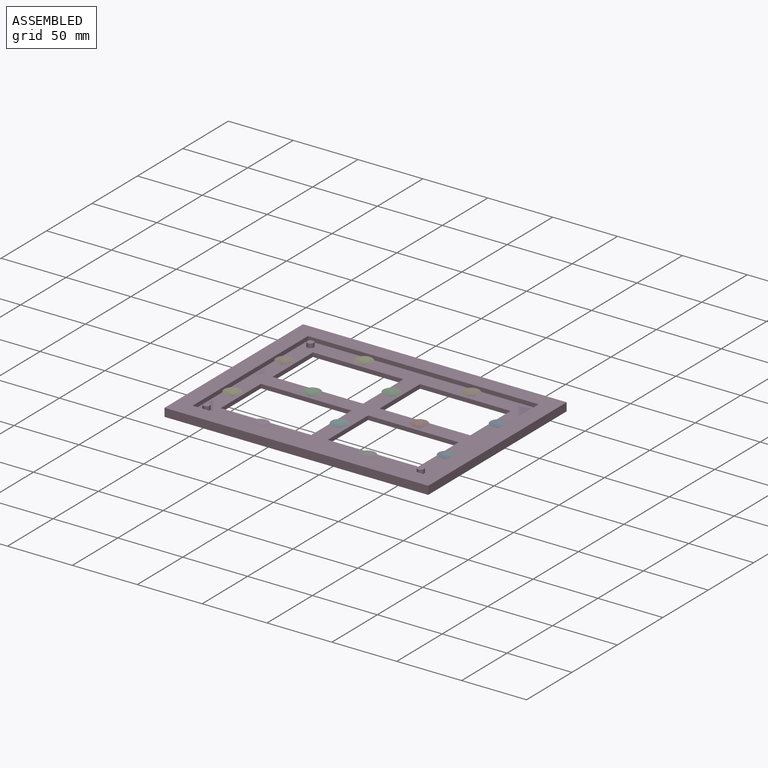
[diagram: assembled view]
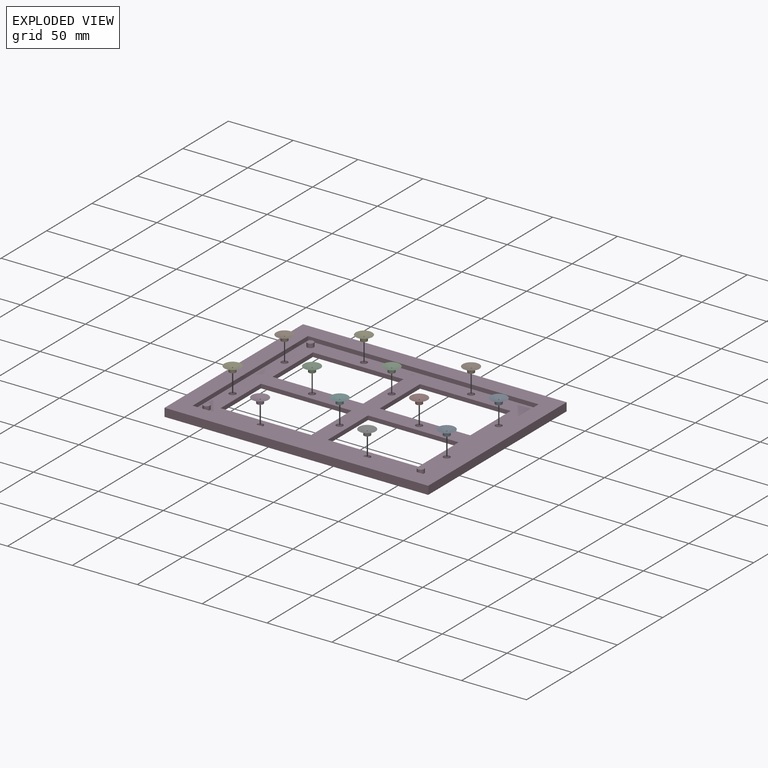
[diagram: exploded view]
GUIDED TOUR — MATED ASSEMBLY (Onshape document d00b283f4223f2fedd9b325e, AutoMate assembly d00b283f4223f2fedd9b325e_2fc6355149cce2fc89a956a5_8d865ac7467b71a8227b43af_default)

This assembly has 13 components, labeled P0..P12 below (a component is one placed occurrence of a part; the same part can appear more than once), held together by 24 mates. A mate is a constraint between two components; its type names the relative motion it leaves free:
  PLANAR — leaves sliding in the plane through the listed point (normal = the listed direction) and rotation about that normal free,
  SLIDER — leaves translation along the listed axis free.
Axis/direction vectors are unit vectors and 'through' points are millimeter coordinates, both in the assembly's world frame.

MATES
  1. PLANAR "Planar 11": P11 <-> P0, direction (0.000, 0.000, 1.000) through (109.31, 105.97, 10.94) mm
  2. SLIDER "Slider 7": P2 <-> P11, axis (0.000, 0.000, -1.000) through (-14.52, 134.54, 10.94) mm
  3. PLANAR "Planar 7": P11 <-> P2, direction (0.000, 0.000, 1.000) through (-14.52, 134.54, 10.94) mm
  4. PLANAR "Planar 6": P11 <-> P7, direction (0.000, 0.000, 1.000) through (68.03, 134.54, 10.94) mm
  5. SLIDER "Slider 8": P11 <-> P4, axis (0.000, 0.000, 1.000) through (-55.79, 105.97, 10.94) mm
  6. PLANAR "Planar 3": P11 <-> P10, direction (0.000, 0.000, 1.000) through (26.76, 163.12, 10.94) mm
  7. PLANAR "Planar 9": P11 <-> P3, direction (0.000, 0.000, 1.000) through (-14.52, 77.39, 10.94) mm
  8. PLANAR "Planar 2": P11 <-> P1, direction (0.000, 0.000, 1.000) through (-55.79, 163.12, 10.94) mm
  9. SLIDER "Slider 4": P11 <-> P9, axis (0.000, 0.000, 1.000) through (68.03, 191.69, 10.94) mm
  10. SLIDER "Slider 5": P8 <-> P11, axis (0.000, 0.000, -1.000) through (109.31, 163.12, 10.94) mm
  11. PLANAR "Planar 10": P11 <-> P5, direction (0.000, 0.000, 1.000) through (26.76, 105.97, 10.94) mm
  12. SLIDER "Slider 6": P11 <-> P7, axis (0.000, 0.000, 1.000) through (68.03, 134.54, 13.48) mm
  13. SLIDER "Slider 3": P11 <-> P10, axis (0.000, 0.000, 1.000) through (26.76, 163.12, 13.48) mm
  14. PLANAR "Planar 8": P11 <-> P4, direction (0.000, 0.000, 1.000) through (-55.79, 105.97, 10.94) mm
  15. SLIDER "Slider 12": P11 <-> P6, axis (0.000, 0.000, 1.000) through (68.03, 77.39, 13.48) mm
  16. SLIDER "Slider 10": P11 <-> P5, axis (0.000, 0.000, 1.000) through (26.76, 105.97, 13.48) mm
  17. SLIDER "Slider 11": P11 <-> P0, axis (0.000, 0.000, 1.000) through (109.31, 105.97, 13.48) mm
  18. PLANAR "Planar 1": P11 <-> P12, direction (0.000, 0.000, 1.000) through (-14.52, 191.69, 10.94) mm
  19. SLIDER "Slider 1": P11 <-> P12, axis (0.000, 0.000, 1.000) through (-14.52, 191.69, 13.48) mm
  20. SLIDER "Slider 2": P11 <-> P1, axis (0.000, 0.000, 1.000) through (-55.79, 163.12, 13.48) mm
  21. SLIDER "Slider 9": P11 <-> P3, axis (0.000, 0.000, 1.000) through (-14.52, 77.39, 10.94) mm
  22. PLANAR "Planar 4": P11 <-> P9, direction (0.000, 0.000, 1.000) through (68.03, 191.69, 10.94) mm
  23. PLANAR "Planar 5": P8 <-> P11, direction (0.000, 0.000, -1.000) through (109.31, 163.12, 10.94) mm
  24. PLANAR "Planar 12": P11 <-> P6, direction (0.000, 0.000, 1.000) through (68.03, 77.39, 10.94) mm

ASSEMBLY ORDER
  1. P11 — the base component [order verified]
  2. P7 [order verified]
  3. P2 [order verified]
  4. P5 [order verified]
  5. P0 [order verified]
  6. P4 [order verified]
  7. P10 [order verified]
  8. P6 [order verified]
  9. P8 [order verified]
  10. P3 [order verified]
  11. P1 [order verified]
  12. P12 [order verified]
  13. P9 [order verified]
Order-tag legend:
  [order verified] — this step's position reverses a verified removal order: the component was checked to insert without passing through the ones already placed.

Of the 13 components, 13 carry the full construction recipe — the FeatureScript program that regenerates the part's solid from scratch; the rest are supplied as boundary geometry only.
Because this assembly has more than 12 components, the tour below covers the 12 most significant ones individually (every recipe-attached component first, then the largest by part volume), in assembly order; the remaining 1 are summarized together in a grouped section at the end.
Each toured component is shown spotlighted twice — in the assembled view, then in the exploded view, where a leader line traces a displaced component back to its assembled socket (saturated green if recipe-attached, orange if geometry-only; every other component desaturated gray) — followed by its recipe or geometry summary and the mates that hold it.
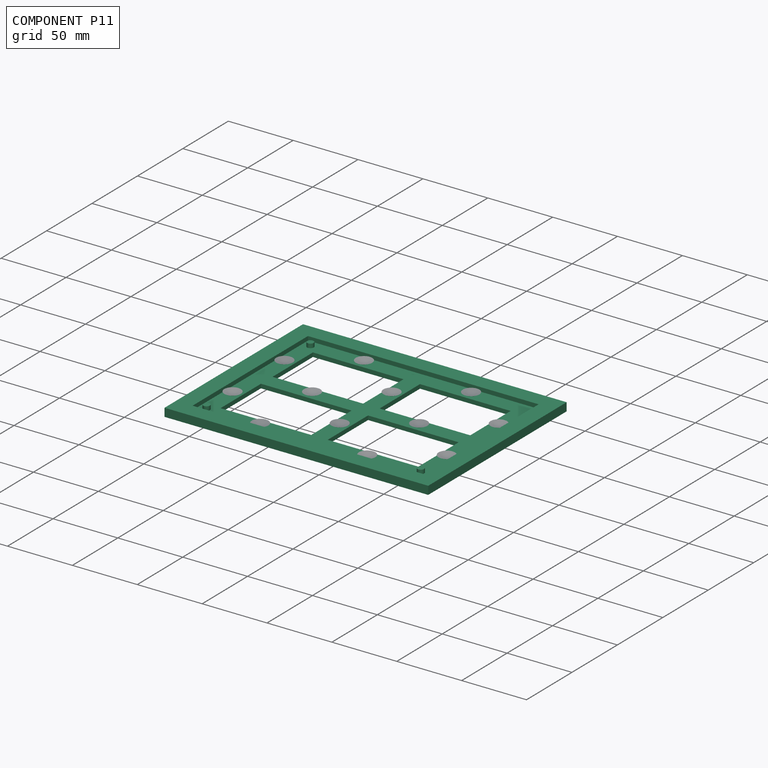
[diagram: component P11 — assembled]
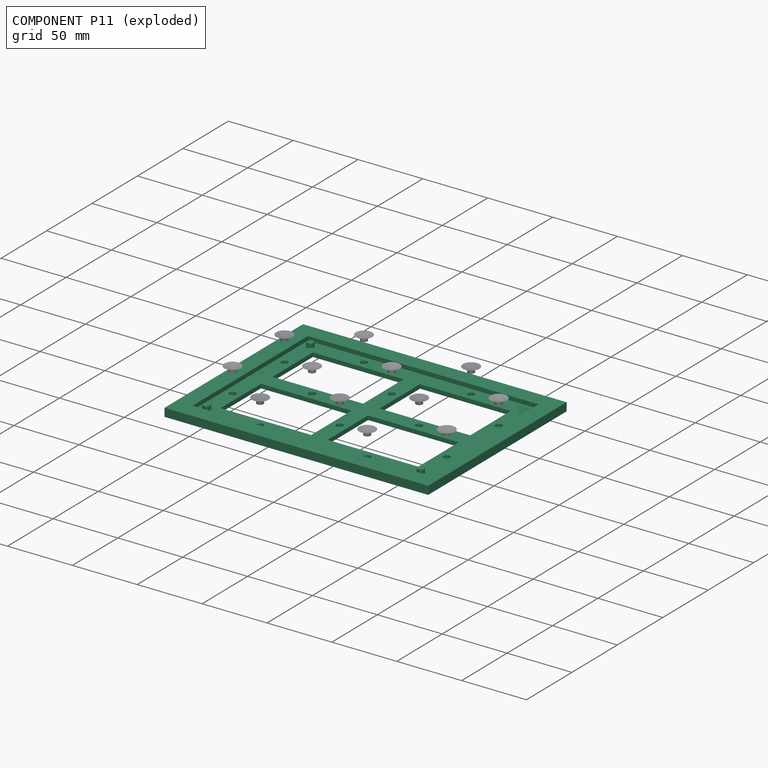
[diagram: component P11 — exploded]
COMPONENT P11 — recipe-attached (CADFS 00727624, mesh-verified: the recipe's output STEP matches this component's geometry to below the mesh-comparison resolution (tessellation chordal tolerance ~0.381 mm)).
Held by: PLANAR mate "Planar 11" to P0; SLIDER mate "Slider 7" to P2; PLANAR mate "Planar 7" to P2; PLANAR mate "Planar 6" to P7; SLIDER mate "Slider 8" to P4; PLANAR mate "Planar 3" to P10; PLANAR mate "Planar 9" to P3; PLANAR mate "Planar 2" to P1; SLIDER mate "Slider 4" to P9; SLIDER mate "Slider 5" to P8; PLANAR mate "Planar 10" to P5; SLIDER mate "Slider 6" to P7; SLIDER mate "Slider 3" to P10; PLANAR mate "Planar 8" to P4; SLIDER mate "Slider 12" to P6; SLIDER mate "Slider 10" to P5; SLIDER mate "Slider 11" to P0; PLANAR mate "Planar 1" to P12; SLIDER mate "Slider 1" to P12; SLIDER mate "Slider 2" to P1; SLIDER mate "Slider 9" to P3; PLANAR mate "Planar 4" to P9; PLANAR mate "Planar 5" to P8; PLANAR mate "Planar 12" to P6.
Construction recipe (FeatureScript — the CAD program that rebuilds this solid; sketch coordinates are in the units given by the * unit suffixes, e.g. mm):

FeatureScript 1511;
import(path : "onshape/std/geometry.fs", version : "1511.0");
import(path : "onshape/std/common.fs", version : "1511.0");
const mm = millimeter;
const VERTEX = EntityType.VERTEX;
const EDGE = EntityType.EDGE;
const FACE = EntityType.FACE;
const BODY = EntityType.BODY;
function v(x, y){return vector(x, y);}
function OD(order){return orderDisambiguation(order);}
function OSD(set){return originalSetDisambiguation(set);}
function TD(topology){return topologyDisambiguation(topology);}
function TDD(query){return trueDependencyDisambiguation(query);}
function sQuery(a, b, c) {return sketchEntityQuery(a, b, c);}

annotation { "Feature Type Name" : "Feature", "Feature Type Description" : "" }
export const myFeature = defineFeature(function(context is Context, id is Id, definition is map)
    precondition{}
    {
        {
            var Q0;
            Q0=qCreatedBy(makeId("Top.planeOp"),FACE);
            var sketch = newSketch(context, id + "F0", { "sketchPlane" : qUnion([Q0])});
            skLineSegment(sketch, "E0.bottom", {"start": v(0, 0) * mm, "end": v(203.2, 0) * mm});
            skLineSegment(sketch, "E0.top", {"start": v(0, 152.4) * mm, "end": v(203.2, 152.4) * mm});
            skLineSegment(sketch, "E0.left", {"start": v(0, 0) * mm, "end": v(0, 152.4) * mm});
            skLineSegment(sketch, "E0.right", {"start": v(203.2, 0) * mm, "end": v(203.2, 152.4) * mm});
            skLineSegment(sketch, "E1.bottom", {"start": v(12.7, 139.7) * mm, "end": v(190.5, 139.7) * mm});
            skLineSegment(sketch, "E1.top", {"start": v(12.7, 12.7) * mm, "end": v(190.5, 12.7) * mm});
            skLineSegment(sketch, "E1.left", {"start": v(12.7, 139.7) * mm, "end": v(12.7, 12.7) * mm});
            skLineSegment(sketch, "E1.right", {"start": v(190.5, 139.7) * mm, "end": v(190.5, 12.7) * mm});
            skSolve(sketch);
        }
        {
            var Q0;
            Q0 = qSketchRegion(id + "F0", true);
            extrude(context, id + "F1", {"entities" : qUnion([Q0]), "depth" : 6.35 * mm, "offsetDistance" : 25.4 * mm});
        }
        {
            var Q0;
            Q0=qCreatedBy(makeId("Top.planeOp"),FACE);
            var sketch = newSketch(context, id + "F2", { "sketchPlane" : qUnion([Q0])});
            skLineSegment(sketch, "E2.bottom", {"start": v(12.7, 12.7) * mm, "end": v(190.5, 12.7) * mm});
            skLineSegment(sketch, "E2.top", {"start": v(12.7, 139.7) * mm, "end": v(190.5, 139.7) * mm});
            skLineSegment(sketch, "E2.left", {"start": v(12.7, 12.7) * mm, "end": v(12.7, 139.7) * mm});
            skLineSegment(sketch, "E2.right", {"start": v(190.5, 12.7) * mm, "end": v(190.5, 139.7) * mm});
            skLineSegment(sketch, "E3.bottom", {"start": v(25.4, 127) * mm, "end": v(95.25, 127) * mm});
            skLineSegment(sketch, "E3.top", {"start": v(25.4, 82.55) * mm, "end": v(95.25, 82.55) * mm});
            skLineSegment(sketch, "E3.left", {"start": v(25.4, 127) * mm, "end": v(25.4, 82.55) * mm});
            skLineSegment(sketch, "E3.right", {"start": v(95.25, 127) * mm, "end": v(95.25, 82.55) * mm});
            skLineSegment(sketch, "E4.bottom", {"start": v(107.95, 127) * mm, "end": v(177.8, 127) * mm});
            skLineSegment(sketch, "E4.top", {"start": v(107.95, 82.55) * mm, "end": v(177.8, 82.55) * mm});
            skLineSegment(sketch, "E4.left", {"start": v(107.95, 127) * mm, "end": v(107.95, 82.55) * mm});
            skLineSegment(sketch, "E4.right", {"start": v(177.8, 127) * mm, "end": v(177.8, 82.55) * mm});
            skLineSegment(sketch, "E5.bottom", {"start": v(25.4, 25.4) * mm, "end": v(95.25, 25.4) * mm});
            skLineSegment(sketch, "E5.top", {"start": v(25.4, 69.85) * mm, "end": v(95.25, 69.85) * mm});
            skLineSegment(sketch, "E5.left", {"start": v(25.4, 25.4) * mm, "end": v(25.4, 69.85) * mm});
            skLineSegment(sketch, "E5.right", {"start": v(95.25, 25.4) * mm, "end": v(95.25, 69.85) * mm});
            skLineSegment(sketch, "E6.bottom", {"start": v(107.95, 25.4) * mm, "end": v(177.8, 25.4) * mm});
            skLineSegment(sketch, "E6.top", {"start": v(107.95, 69.85) * mm, "end": v(177.8, 69.85) * mm});
            skLineSegment(sketch, "E6.left", {"start": v(107.95, 25.4) * mm, "end": v(107.95, 69.85) * mm});
            skLineSegment(sketch, "E6.right", {"start": v(177.8, 25.4) * mm, "end": v(177.8, 69.85) * mm});
            skSolve(sketch);
        }
        {
            var Q0;
            Q0 = qSketchRegion(id + "F2", true);
            extrude(context, id + "F3", {"entities" : qUnion([Q0]), "operationType" : NewBodyOperationType.ADD, "depth" : 3.17 * mm, "offsetDistance" : 25.4 * mm});
        }
        {
            var Q0;
            Q0=makeQuery(id+"F3.opExtrude","CAP_FACE",FACE,{"disambiguationData":[OSD([sQuery(id+"F2.wireOp",EDGE,"E2.bottom"),sQuery(id+"F2.wireOp",EDGE,"E2.top"),sQuery(id+"F2.wireOp",EDGE,"E2.left"),sQuery(id+"F2.wireOp",EDGE,"E2.right"),sQuery(id+"F2.wireOp",EDGE,"E3.bottom"),sQuery(id+"F2.wireOp",EDGE,"E3.top"),sQuery(id+"F2.wireOp",EDGE,"E3.left"),sQuery(id+"F2.wireOp",EDGE,"E3.right"),sQuery(id+"F2.wireOp",EDGE,"E4.bottom"),sQuery(id+"F2.wireOp",EDGE,"E4.top"),sQuery(id+"F2.wireOp",EDGE,"E4.left"),sQuery(id+"F2.wireOp",EDGE,"E4.right"),sQuery(id+"F2.wireOp",EDGE,"E5.bottom"),sQuery(id+"F2.wireOp",EDGE,"E5.top"),sQuery(id+"F2.wireOp",EDGE,"E5.left"),sQuery(id+"F2.wireOp",EDGE,"E5.right"),sQuery(id+"F2.wireOp",EDGE,"E6.bottom"),sQuery(id+"F2.wireOp",EDGE,"E6.top"),sQuery(id+"F2.wireOp",EDGE,"E6.left"),sQuery(id+"F2.wireOp",EDGE,"E6.right")])],"isStart":false});
            var sketch = newSketch(context, id + "F4", { "sketchPlane" : qUnion([Q0])});
            skCircle(sketch, "E7", {"center": v(19.05, 133.35) * mm, "radius": 2.54 * mm});
            skCircle(sketch, "E8", {"center": v(19.05, 19.05) * mm, "radius": 2.54 * mm});
            skCircle(sketch, "E9", {"center": v(184.15, 19.05) * mm, "radius": 2.54 * mm});
            skSolve(sketch);
        }
        {
            var Q0;
            Q0 = qSketchRegion(id + "F4", true);
            var Q1;
            Q1=makeQuery(id+"F1.opExtrude","CAP_FACE",FACE,{"disambiguationData":[OSD([sQuery(id+"F0.wireOp",EDGE,"E0.bottom"),sQuery(id+"F0.wireOp",EDGE,"E0.top"),sQuery(id+"F0.wireOp",EDGE,"E0.left"),sQuery(id+"F0.wireOp",EDGE,"E0.right"),sQuery(id+"F0.wireOp",EDGE,"E1.bottom"),sQuery(id+"F0.wireOp",EDGE,"E1.top"),sQuery(id+"F0.wireOp",EDGE,"E1.left"),sQuery(id+"F0.wireOp",EDGE,"E1.right")])],"isStart":false});
            extrude(context, id + "F5", {"entities" : qUnion([Q0]), "operationType" : NewBodyOperationType.ADD, "endBound" : BoundingType.UP_TO_SURFACE, "depth" : 25.4 * mm, "endBoundEntityFace" : qUnion([Q1]), "offsetDistance" : 25.4 * mm});
        }
        {
            var Q0;
            Q0=makeQuery(id+"F3.opExtrude","CAP_FACE",FACE,{"disambiguationData":[OSD([sQuery(id+"F2.wireOp",EDGE,"E2.bottom"),sQuery(id+"F2.wireOp",EDGE,"E2.top"),sQuery(id+"F2.wireOp",EDGE,"E2.left"),sQuery(id+"F2.wireOp",EDGE,"E2.right"),sQuery(id+"F2.wireOp",EDGE,"E3.bottom"),sQuery(id+"F2.wireOp",EDGE,"E3.top"),sQuery(id+"F2.wireOp",EDGE,"E3.left"),sQuery(id+"F2.wireOp",EDGE,"E3.right"),sQuery(id+"F2.wireOp",EDGE,"E4.bottom"),sQuery(id+"F2.wireOp",EDGE,"E4.top"),sQuery(id+"F2.wireOp",EDGE,"E4.left"),sQuery(id+"F2.wireOp",EDGE,"E4.right"),sQuery(id+"F2.wireOp",EDGE,"E5.bottom"),sQuery(id+"F2.wireOp",EDGE,"E5.top"),sQuery(id+"F2.wireOp",EDGE,"E5.left"),sQuery(id+"F2.wireOp",EDGE,"E5.right"),sQuery(id+"F2.wireOp",EDGE,"E6.bottom"),sQuery(id+"F2.wireOp",EDGE,"E6.top"),sQuery(id+"F2.wireOp",EDGE,"E6.left"),sQuery(id+"F2.wireOp",EDGE,"E6.right")])],"isStart":false});
            var sketch = newSketch(context, id + "F6", { "sketchPlane" : qUnion([Q0])});
            skCircle(sketch, "E10", {"center": v(60.32, 133.35) * mm, "radius": 2.54 * mm});
            skCircle(sketch, "E11", {"center": v(142.88, 133.35) * mm, "radius": 2.54 * mm});
            skCircle(sketch, "E12", {"center": v(101.6, 47.63) * mm, "radius": 2.54 * mm});
            skCircle(sketch, "E13", {"center": v(101.6, 104.78) * mm, "radius": 2.54 * mm});
            skCircle(sketch, "E14", {"center": v(142.88, 76.2) * mm, "radius": 2.54 * mm});
            skCircle(sketch, "E15", {"center": v(60.33, 19.05) * mm, "radius": 2.54 * mm});
            skCircle(sketch, "E16", {"center": v(184.15, 47.63) * mm, "radius": 2.54 * mm});
            skCircle(sketch, "E17", {"center": v(142.88, 19.05) * mm, "radius": 2.54 * mm});
            skCircle(sketch, "E18", {"center": v(19.05, 47.62) * mm, "radius": 2.54 * mm});
            skCircle(sketch, "E19", {"center": v(184.15, 104.78) * mm, "radius": 2.54 * mm});
            skLineSegment(sketch, "E20", {"start": v(60.32, 127) * mm, "end": v(60.32, 139.7) * mm, "construction": true});
            skLineSegment(sketch, "E21", {"start": v(142.88, 127) * mm, "end": v(142.88, 139.7) * mm, "construction": true});
            skLineSegment(sketch, "E22", {"start": v(95.25, 104.78) * mm, "end": v(107.95, 104.78) * mm, "construction": true});
            skLineSegment(sketch, "E23", {"start": v(95.25, 47.63) * mm, "end": v(107.95, 47.63) * mm, "construction": true});
            skLineSegment(sketch, "E24", {"start": v(60.33, 25.4) * mm, "end": v(60.33, 12.7) * mm, "construction": true});
            skLineSegment(sketch, "E25", {"start": v(142.88, 25.4) * mm, "end": v(142.88, 12.7) * mm, "construction": true});
            skLineSegment(sketch, "E26", {"start": v(177.8, 104.78) * mm, "end": v(190.5, 104.78) * mm, "construction": true});
            skLineSegment(sketch, "E27", {"start": v(177.8, 47.63) * mm, "end": v(190.5, 47.63) * mm, "construction": true});
            skLineSegment(sketch, "E28", {"start": v(142.88, 82.55) * mm, "end": v(142.88, 69.85) * mm, "construction": true});
            skLineSegment(sketch, "E29", {"start": v(60.33, 82.55) * mm, "end": v(60.33, 69.85) * mm, "construction": true});
            skLineSegment(sketch, "E30", {"start": v(25.4, 104.78) * mm, "end": v(12.7, 104.78) * mm, "construction": true});
            skLineSegment(sketch, "E31", {"start": v(25.4, 47.62) * mm, "end": v(12.7, 47.62) * mm, "construction": true});
            skCircle(sketch, "E32", {"center": v(60.33, 76.2) * mm, "radius": 2.54 * mm});
            skCircle(sketch, "E33", {"center": v(19.05, 104.78) * mm, "radius": 2.54 * mm});
            skSolve(sketch);
        }
        {
            var Q0;
            Q0 = qSketchRegion(id + "F6", true);
            extrude(context, id + "F7", {"entities" : qUnion([Q0]), "operationType" : NewBodyOperationType.REMOVE, "oppositeDirection" : true, "depth" : 2.54 * mm, "offsetDistance" : 25.4 * mm});
        }
    });
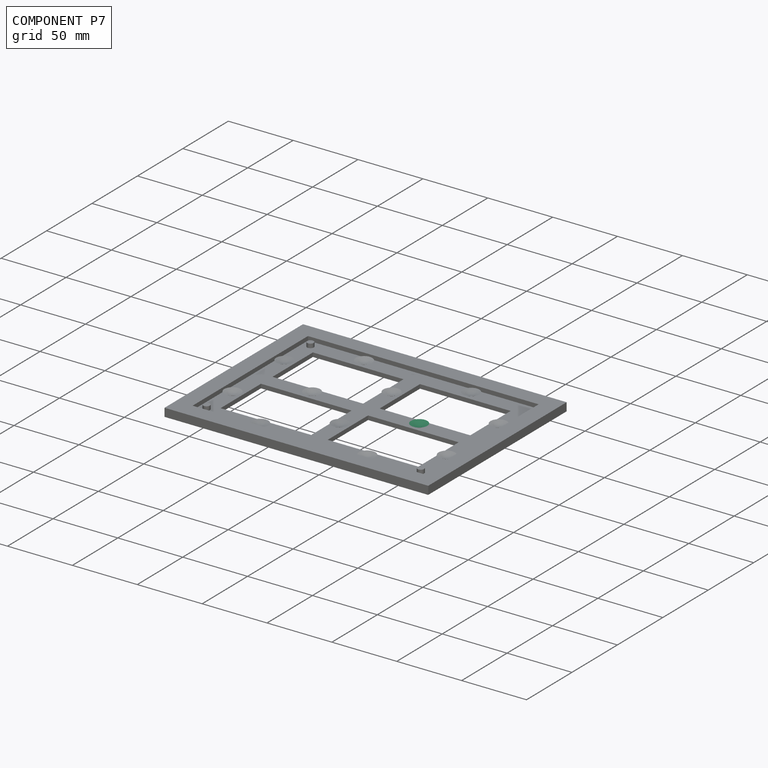
[diagram: component P7 — assembled]
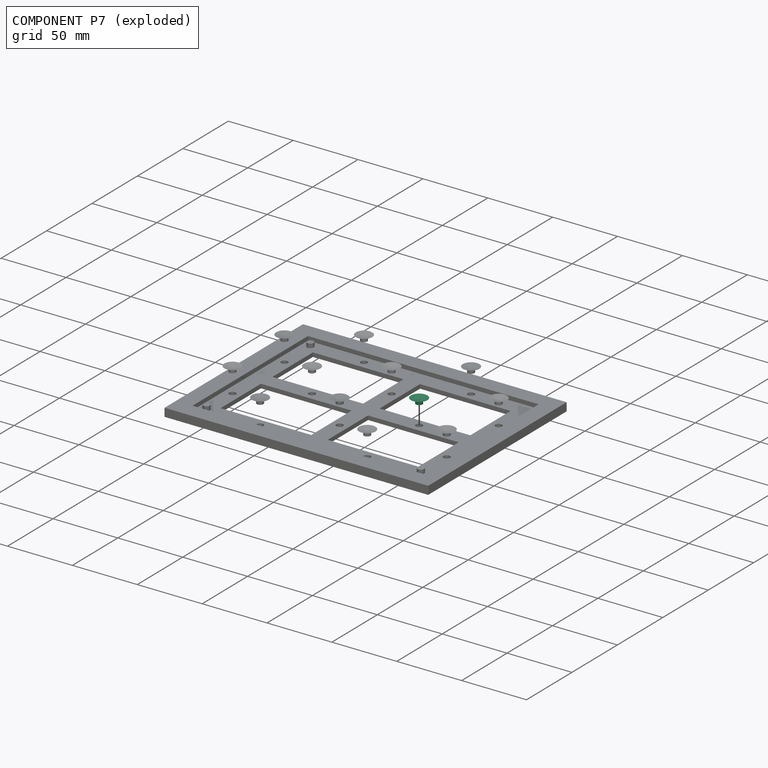
[diagram: component P7 — exploded]
COMPONENT P7 — same part as P0 (CADFS 00727625); its construction recipe is shown at P0.
Held by: PLANAR mate "Planar 6" to P11; SLIDER mate "Slider 6" to P11.
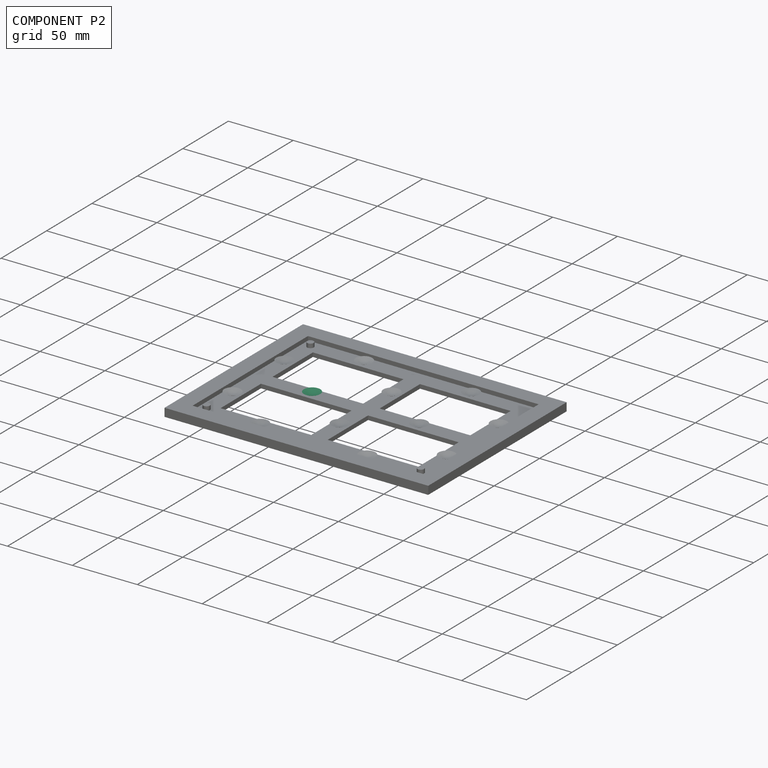
[diagram: component P2 — assembled]
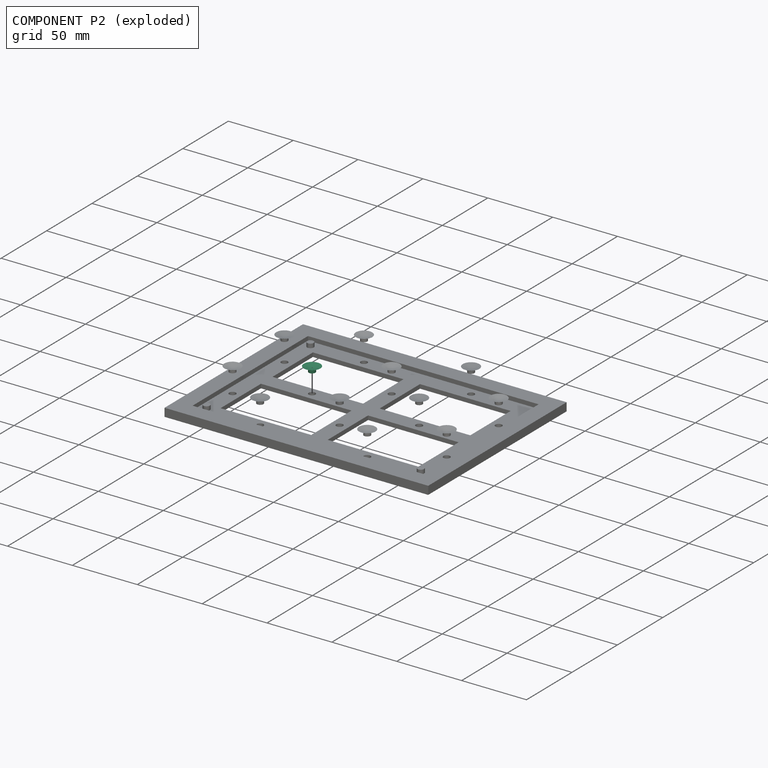
[diagram: component P2 — exploded]
COMPONENT P2 — same part as P0 (CADFS 00727625); its construction recipe is shown at P0.
Held by: SLIDER mate "Slider 7" to P11; PLANAR mate "Planar 7" to P11.
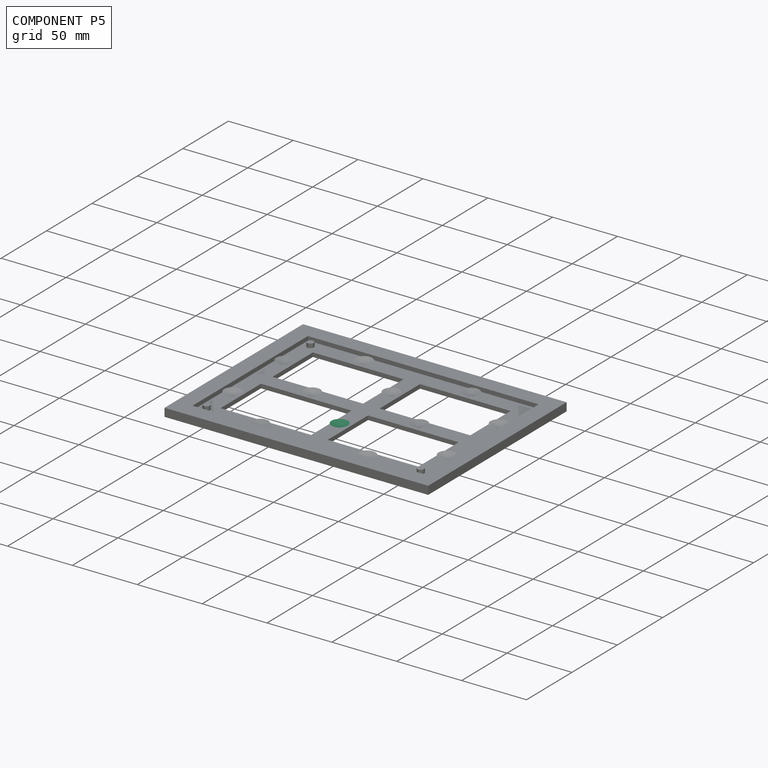
[diagram: component P5 — assembled]
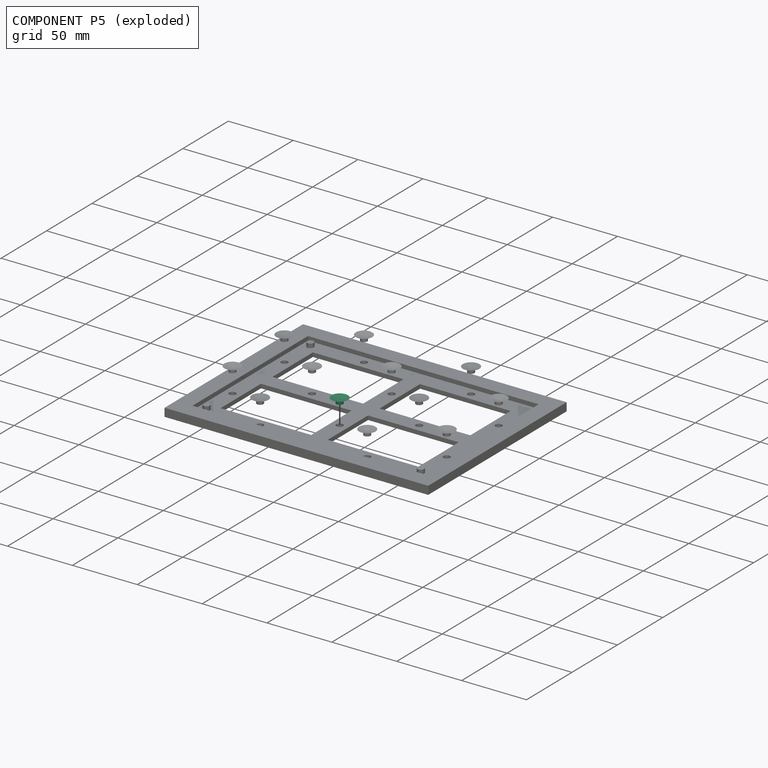
[diagram: component P5 — exploded]
COMPONENT P5 — same part as P0 (CADFS 00727625); its construction recipe is shown at P0.
Held by: PLANAR mate "Planar 10" to P11; SLIDER mate "Slider 10" to P11.
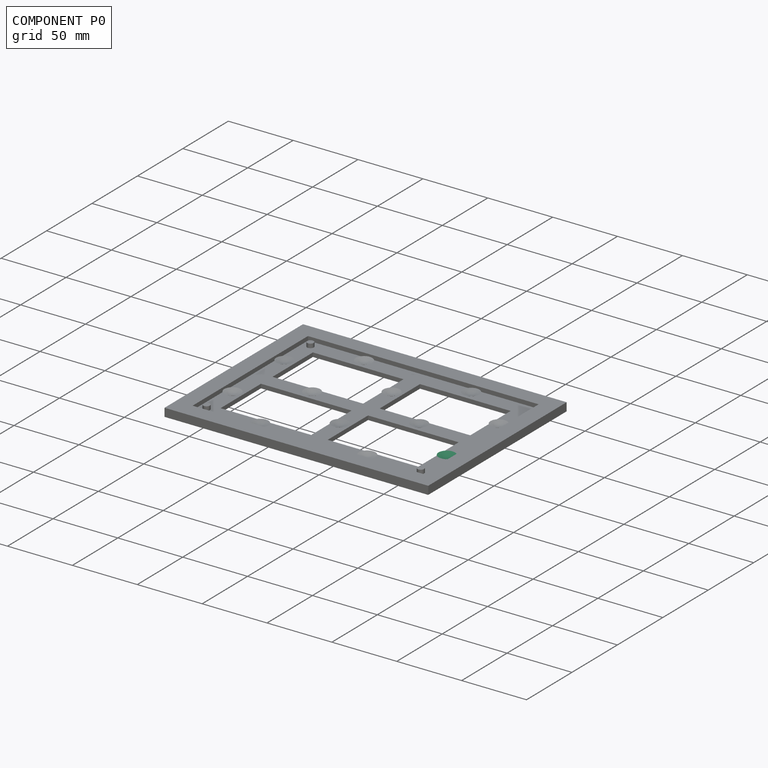
[diagram: component P0 — assembled]
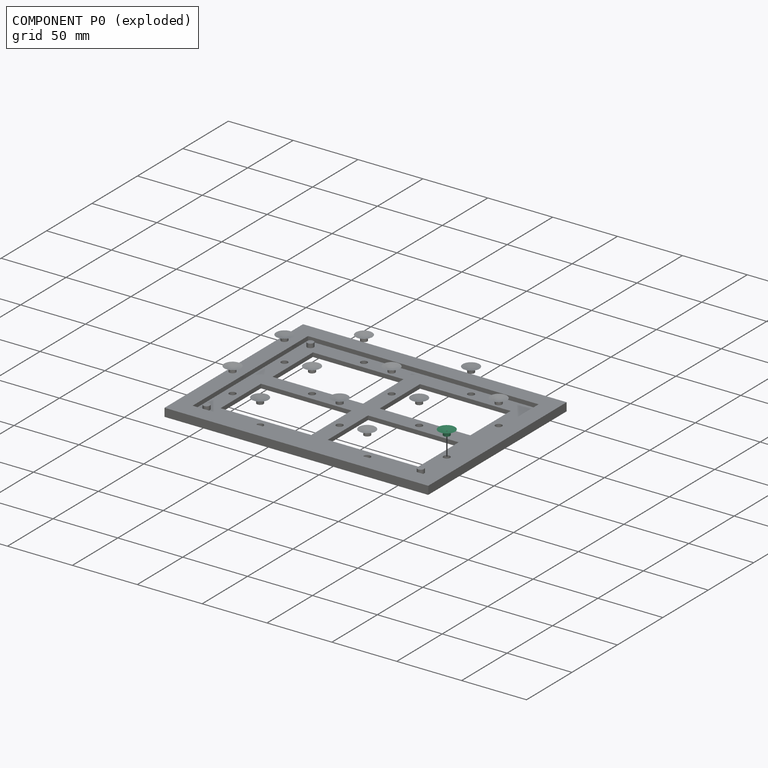
[diagram: component P0 — exploded]
COMPONENT P0 — recipe-attached (CADFS 00727625, mesh-verified: the recipe's output STEP matches this component's geometry to below the mesh-comparison resolution (tessellation chordal tolerance ~0.0276 mm)).
Held by: PLANAR mate "Planar 11" to P11; SLIDER mate "Slider 11" to P11.
Construction recipe (FeatureScript — the CAD program that rebuilds this solid; sketch coordinates are in the units given by the * unit suffixes, e.g. mm):

FeatureScript 1511;
import(path : "onshape/std/geometry.fs", version : "1511.0");
import(path : "onshape/std/common.fs", version : "1511.0");
const mm = millimeter;
const VERTEX = EntityType.VERTEX;
const EDGE = EntityType.EDGE;
const FACE = EntityType.FACE;
const BODY = EntityType.BODY;
function v(x, y){return vector(x, y);}
function OD(order){return orderDisambiguation(order);}
function OSD(set){return originalSetDisambiguation(set);}
function TD(topology){return topologyDisambiguation(topology);}
function TDD(query){return trueDependencyDisambiguation(query);}
function sQuery(a, b, c) {return sketchEntityQuery(a, b, c);}

annotation { "Feature Type Name" : "Feature", "Feature Type Description" : "" }
export const myFeature = defineFeature(function(context is Context, id is Id, definition is map)
    precondition{}
    {
        {
            var Q0;
            Q0=qCreatedBy(makeId("Front.planeOp"),FACE);
            var sketch = newSketch(context, id + "F0", { "sketchPlane" : qUnion([Q0])});
            skLineSegment(sketch, "E0", {"start": v(0, 0) * mm, "end": v(2.54, 0) * mm});
            skLineSegment(sketch, "E1", {"start": v(2.54, 0) * mm, "end": v(2.54, 2.54) * mm});
            skArc(sketch, "E2", {"start": v(0, 2.8) * mm, "mid": v(1.96, 2.95) * mm, "end": v(3.87, 3.42) * mm});
            skLineSegment(sketch, "E3", {"start": v(0, 2.8) * mm, "end": v(0, 0) * mm});
            skArc(sketch, "E4", {"start": v(2.54, 2.54) * mm, "mid": v(4.5, 3.1) * mm, "end": v(6.35, 3.98) * mm});
            skLineSegment(sketch, "E5", {"start": v(3.87, 3.42) * mm, "end": v(6.35, 3.98) * mm});
            skSolve(sketch);
        }
        {
            var Q0;
            Q0 = qSketchRegion(id + "F0", true);
            var Q1;
            Q1=makeQuery(id+"F0.imprint","IMPRINT",FACE,{"disambiguationData":[TD([[makeQuery(id+"F0.imprint","IMPRINT",EDGE,{"derivedFrom":sQuery(id+"F0.wireOp",EDGE,"E0")}),1.0]])]});
            var Q2;
            Q2=sQuery(id+"F0.wireOp",EDGE,"E3");
            revolve(context, id + "F1", {"surfaceOperationType" : NewSurfaceOperationType.NEW, "entities" : qUnion([Q0, Q1]), "axis" : qUnion([Q2]), "revolveType" : RevolveType.FULL});
        }
    });
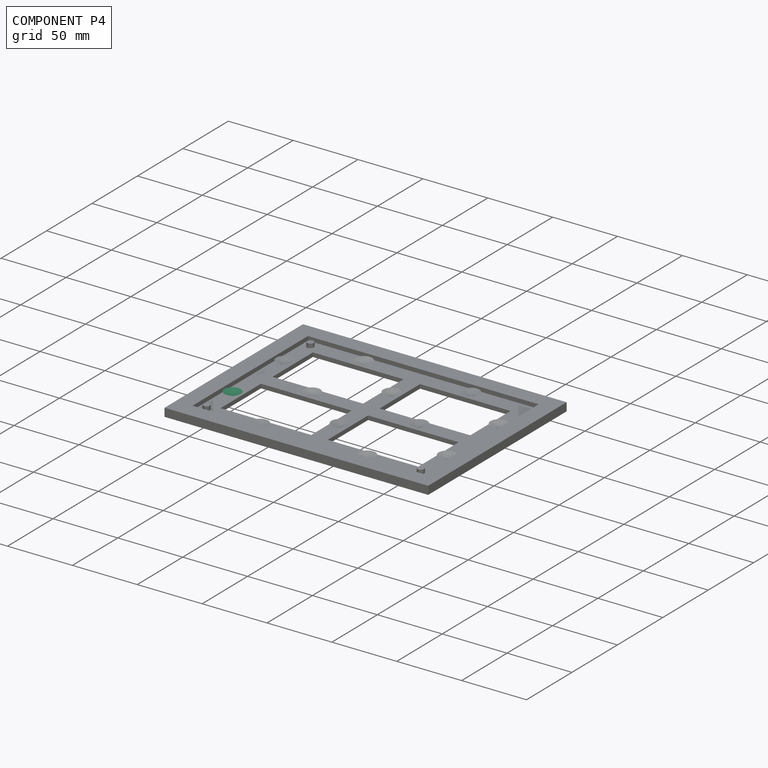
[diagram: component P4 — assembled]
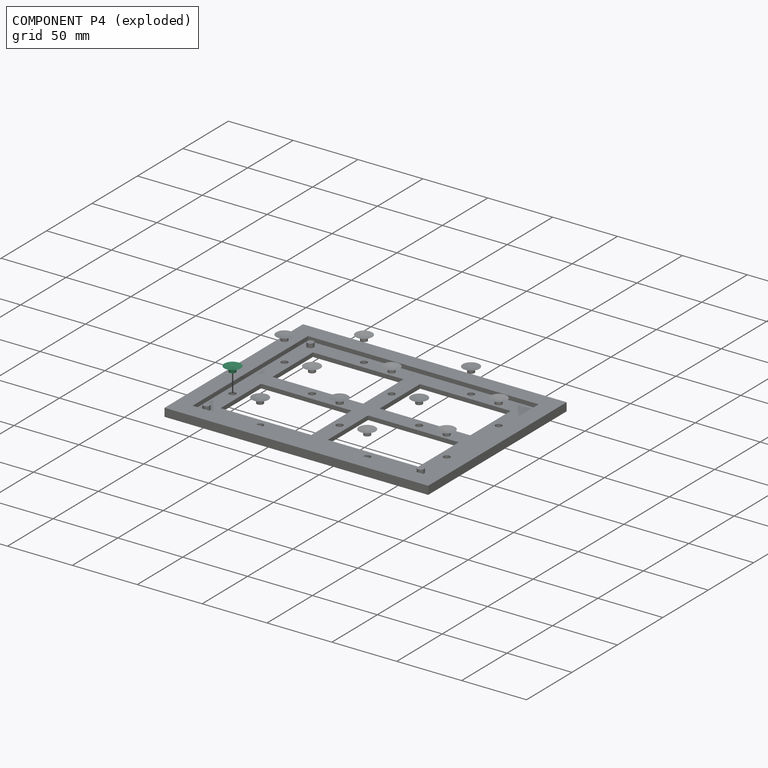
[diagram: component P4 — exploded]
COMPONENT P4 — same part as P0 (CADFS 00727625); its construction recipe is shown at P0.
Held by: SLIDER mate "Slider 8" to P11; PLANAR mate "Planar 8" to P11.
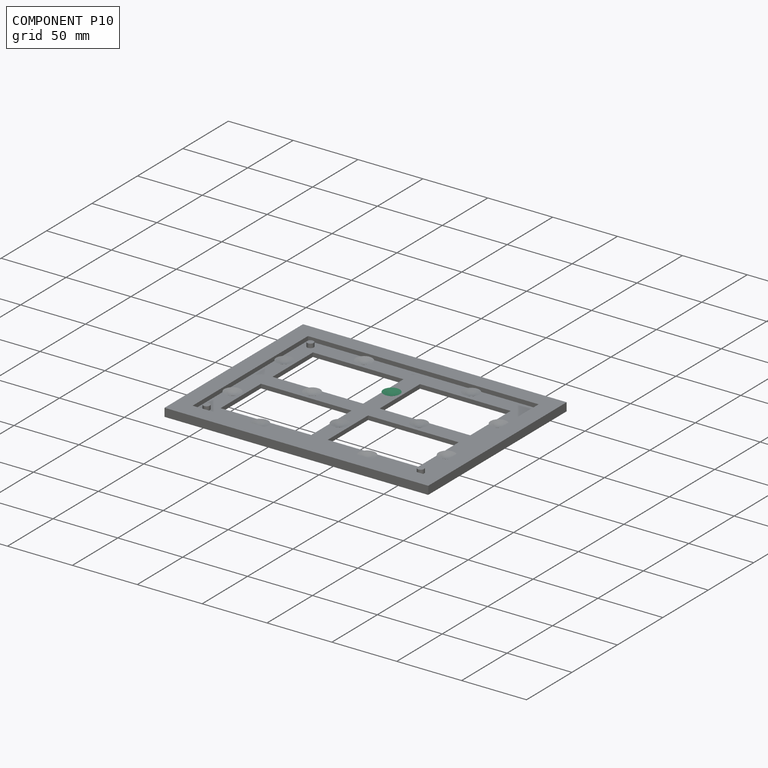
[diagram: component P10 — assembled]
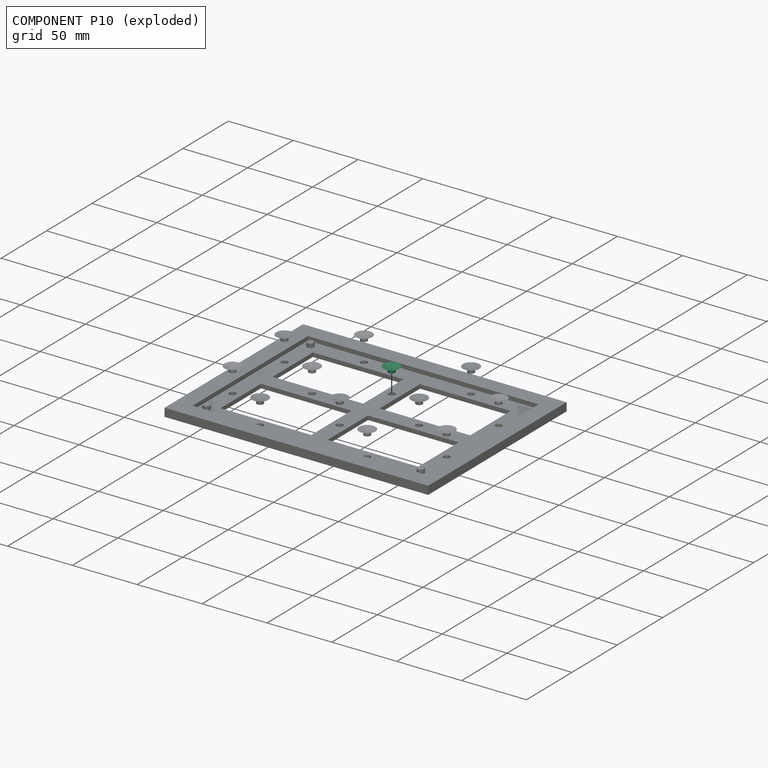
[diagram: component P10 — exploded]
COMPONENT P10 — same part as P0 (CADFS 00727625); its construction recipe is shown at P0.
Held by: PLANAR mate "Planar 3" to P11; SLIDER mate "Slider 3" to P11.
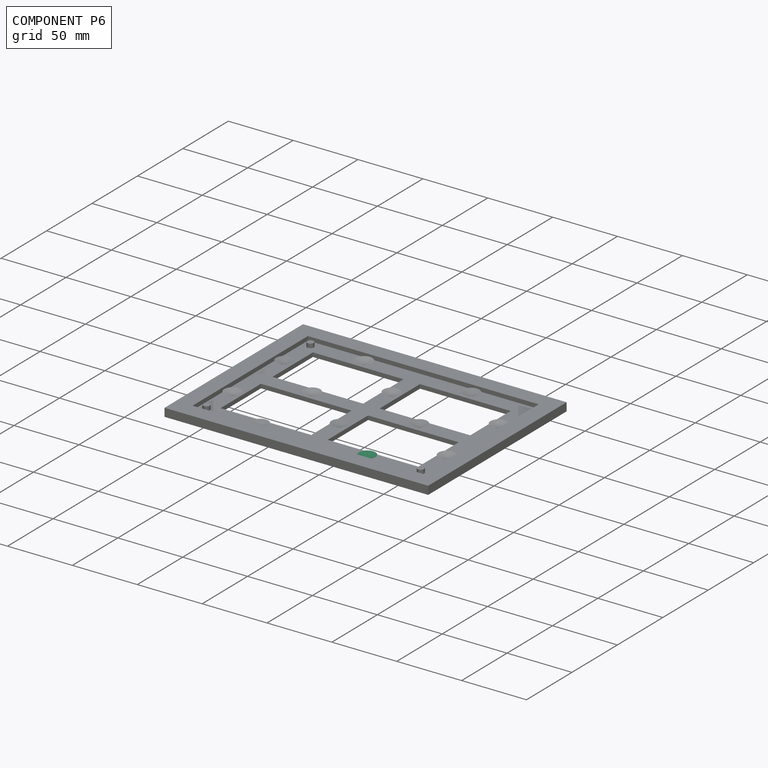
[diagram: component P6 — assembled]
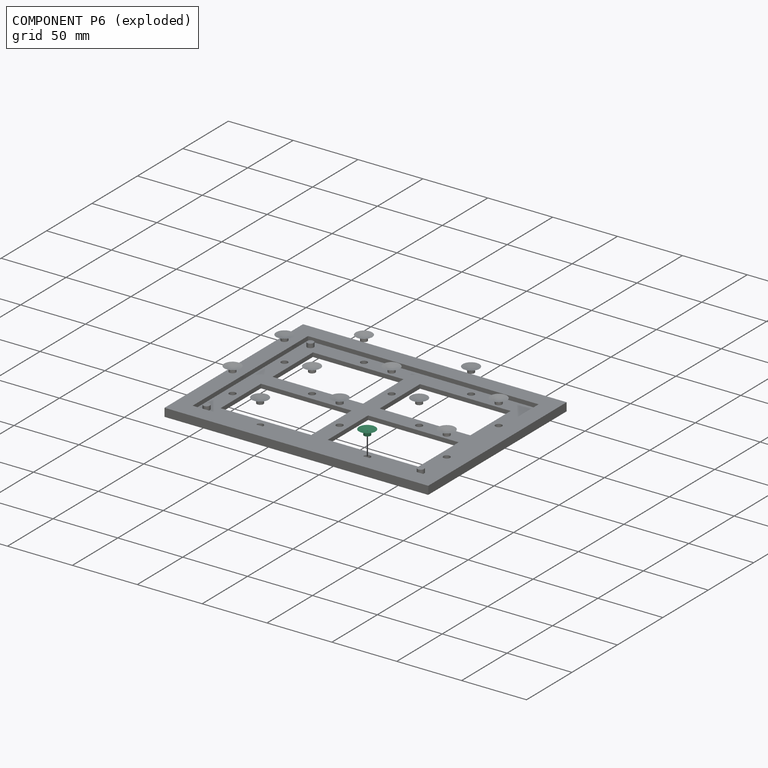
[diagram: component P6 — exploded]
COMPONENT P6 — same part as P0 (CADFS 00727625); its construction recipe is shown at P0.
Held by: SLIDER mate "Slider 12" to P11; PLANAR mate "Planar 12" to P11.
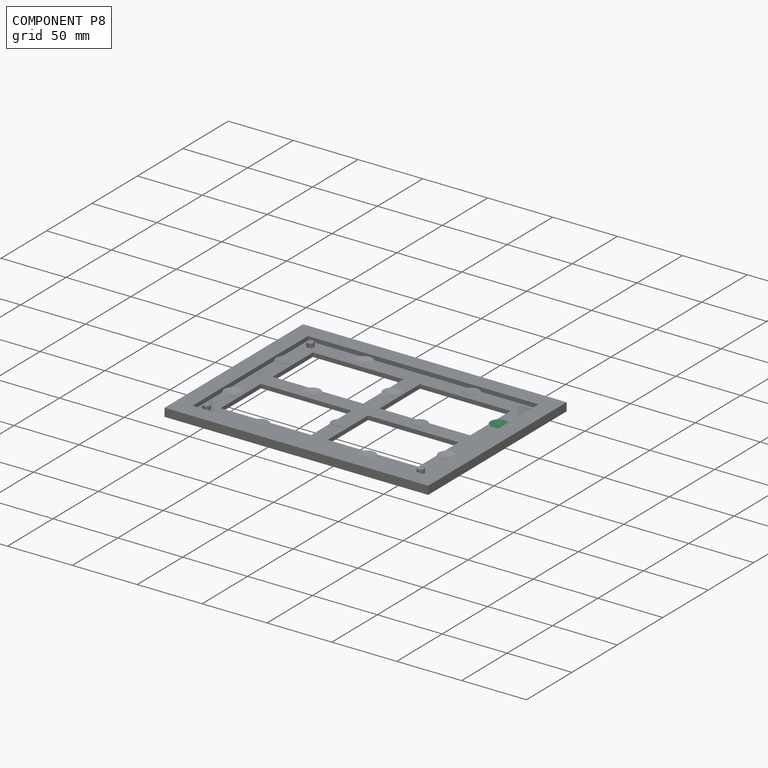
[diagram: component P8 — assembled]
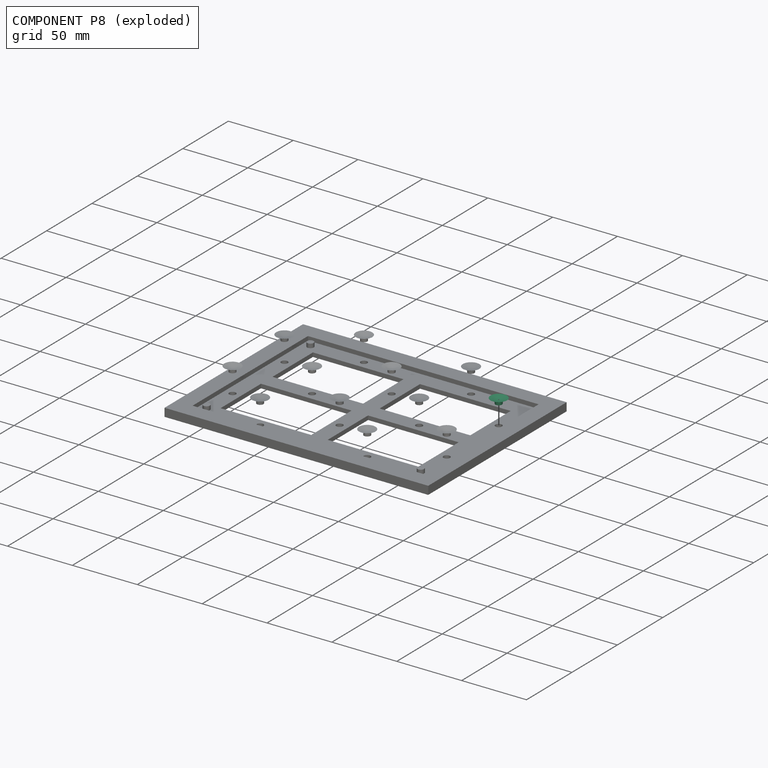
[diagram: component P8 — exploded]
COMPONENT P8 — same part as P0 (CADFS 00727625); its construction recipe is shown at P0.
Held by: SLIDER mate "Slider 5" to P11; PLANAR mate "Planar 5" to P11.
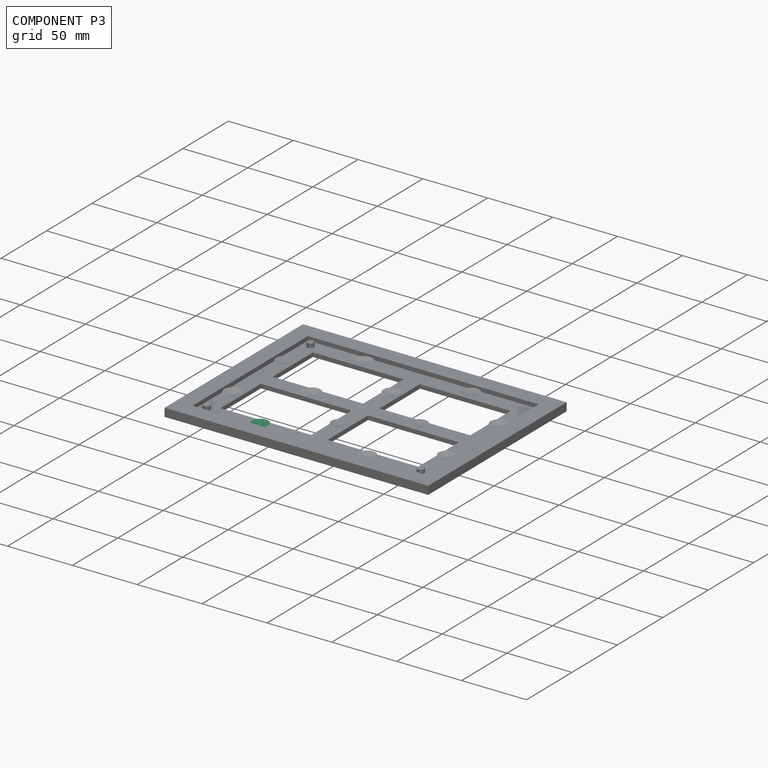
[diagram: component P3 — assembled]
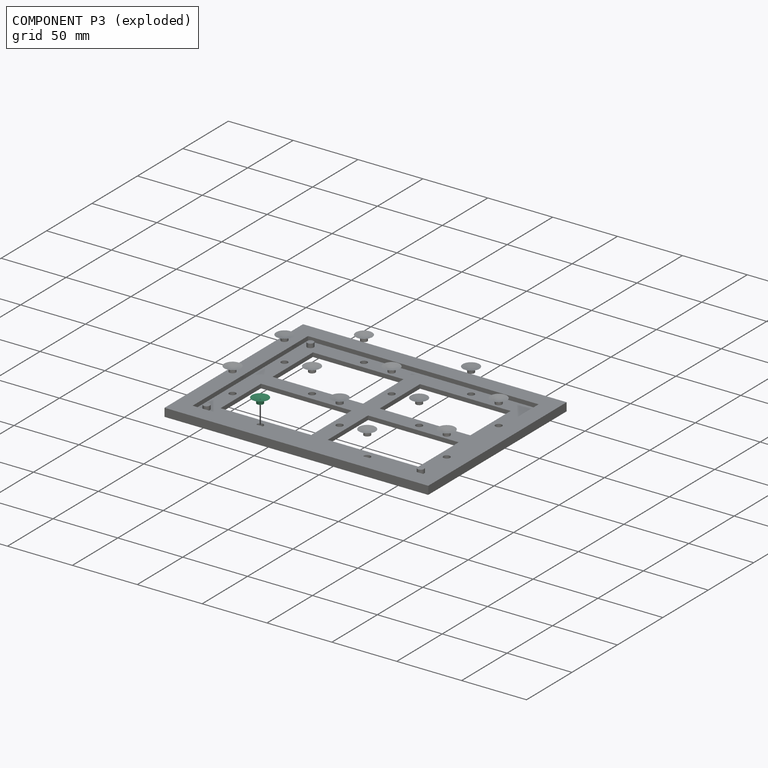
[diagram: component P3 — exploded]
COMPONENT P3 — same part as P0 (CADFS 00727625); its construction recipe is shown at P0.
Held by: PLANAR mate "Planar 9" to P11; SLIDER mate "Slider 9" to P11.
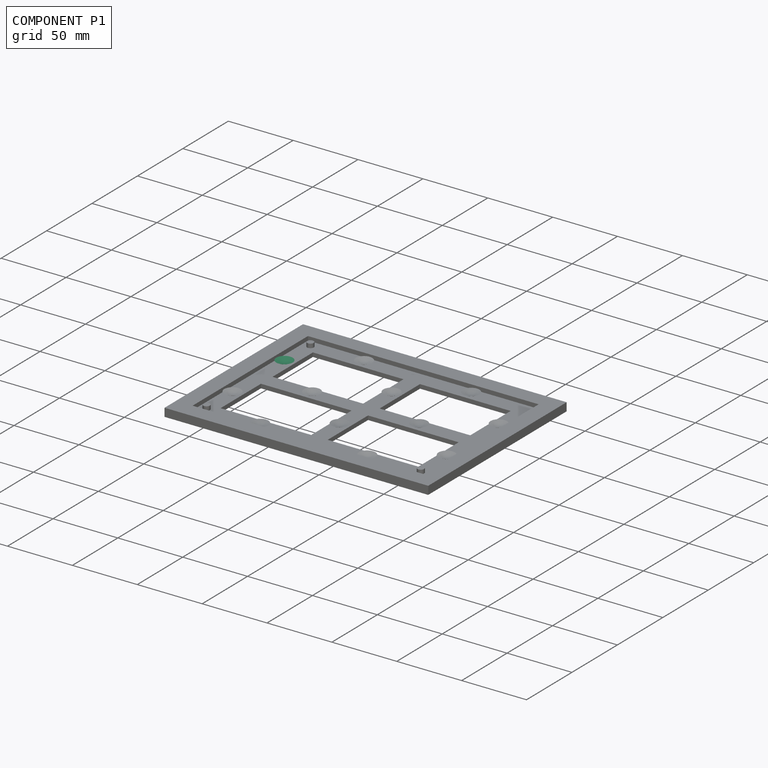
[diagram: component P1 — assembled]
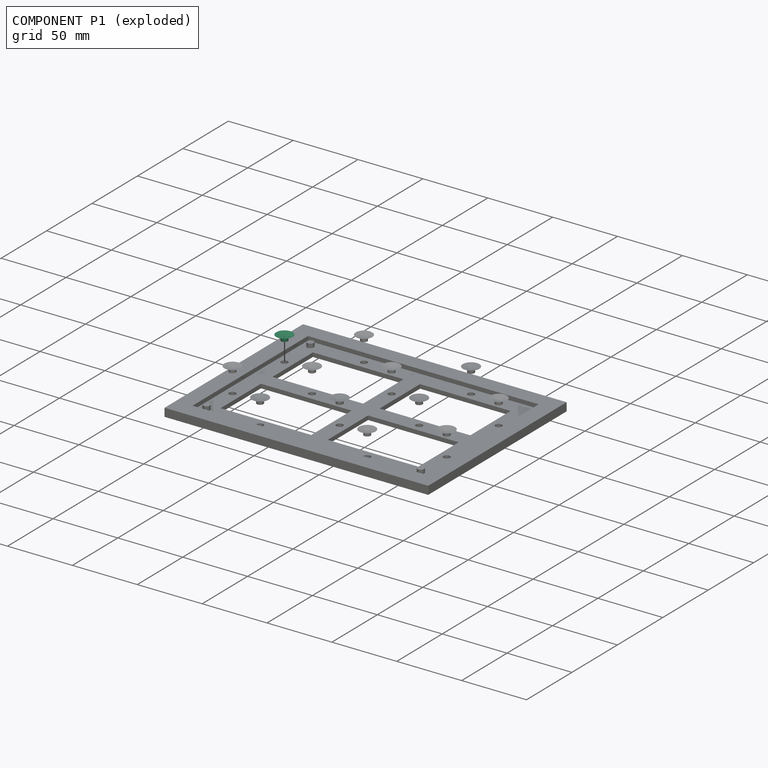
[diagram: component P1 — exploded]
COMPONENT P1 — same part as P0 (CADFS 00727625); its construction recipe is shown at P0.
Held by: PLANAR mate "Planar 2" to P11; SLIDER mate "Slider 2" to P11.
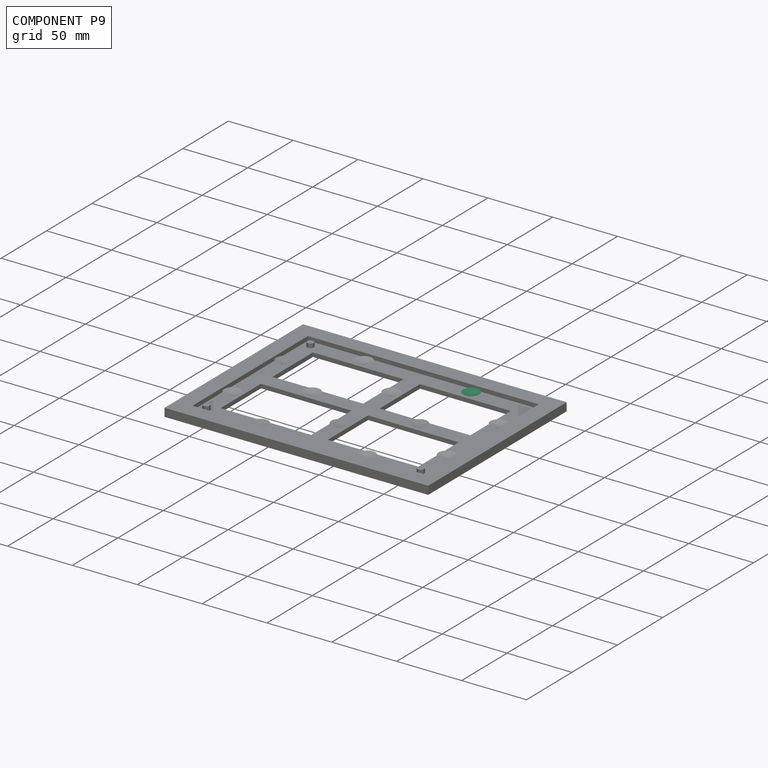
[diagram: component P9 — assembled]
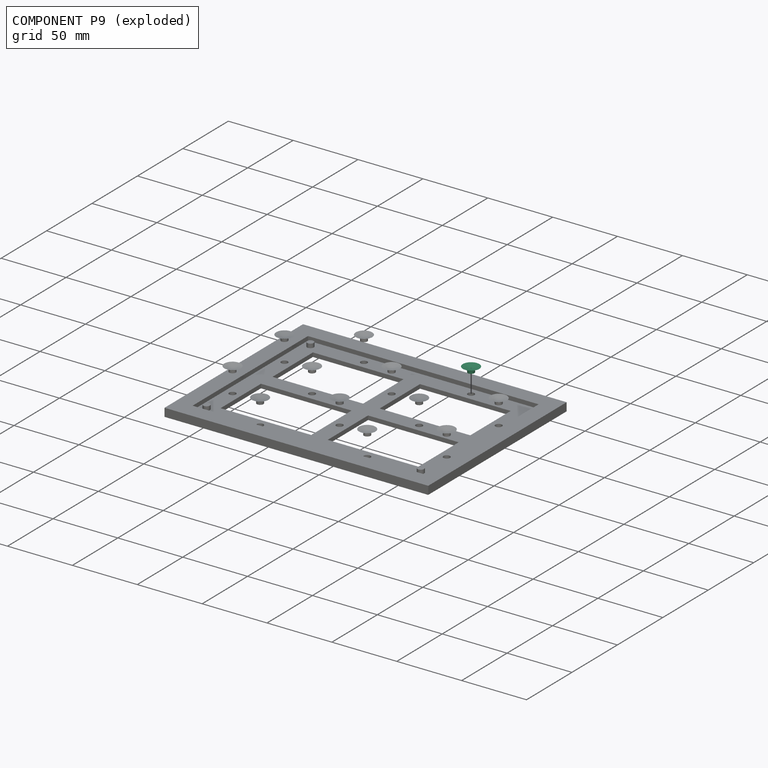
[diagram: component P9 — exploded]
COMPONENT P9 — same part as P0 (CADFS 00727625); its construction recipe is shown at P0.
Held by: SLIDER mate "Slider 4" to P11; PLANAR mate "Planar 4" to P11.
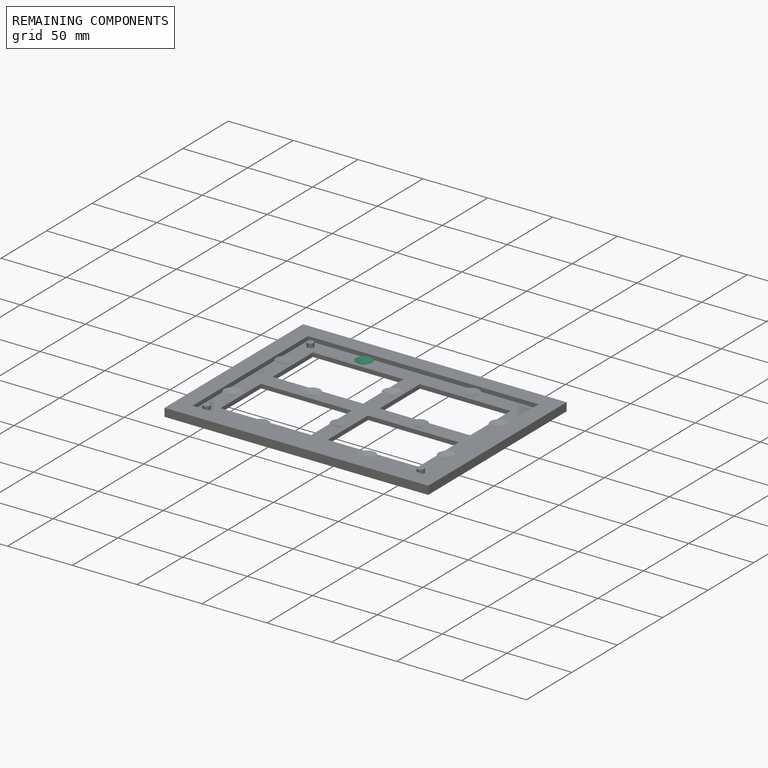
[diagram: remaining components — assembled]
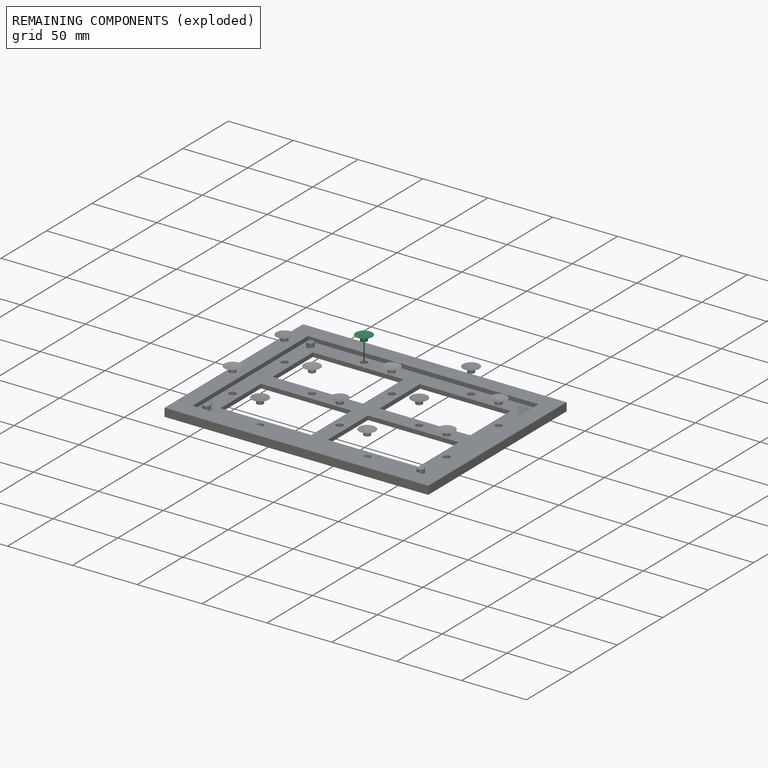
[diagram: remaining components — exploded]
REMAINING COMPONENTS (grouped) — the 1 components below fall outside the per-component tour by the significance rule stated above; both spotlight views highlight the whole group.
  P12: bounding box 12.7 x 12.7 x 4.0 mm, volume 97 mm^3. Recipe-attached (CADFS 00727625; recipe not printed under the significance rule). Held by: PLANAR mate "Planar 1" to P11; SLIDER mate "Slider 1" to P11.
PROVENANCE & LICENSES
Assembly (occurrences, transforms, mates, per-part STEP geometry): AutoMate dataset, Zenodo record 7776208, CC0.
Construction recipes: CADFS (HuggingFace VladPyatov/CADFS, CC-BY-4.0, layered over the ABC dataset), FeatureScript reconstruction programs keyed by ABC model id.
Join: ABC meta listings map ABC model id -> Onshape documentId; within a shared document, parts are matched by geometric signature (bounding-box dims + volume at 0.1% relative tolerance, exact B-rep face/solid counts).
Verification: 13 of this assembly's 13 components carry a recipe attachment, and every attachment is mesh-verified: the CADFS STEP and the AutoMate member STEP were compared as meshes in their shared local frame (symmetric sampled-point-to-mesh distance); worst across the 13 attachments: below the mesh-comparison resolution (tessellation chordal tolerance ~0.381 mm) on a 254 mm part.
Renders: orthographic iso camera (az 35 / el 25); the floor grid conveys scale (grid pitch printed in each image; no ruler). In the exploded view each component is displaced by its stored offset vector: the offsets alone carry the explosion direction (mate normal/axis signs are not orientation cues and do not encode it), and separation distances are assigned per mate-chain, not proportionally to assembly-order depth.
